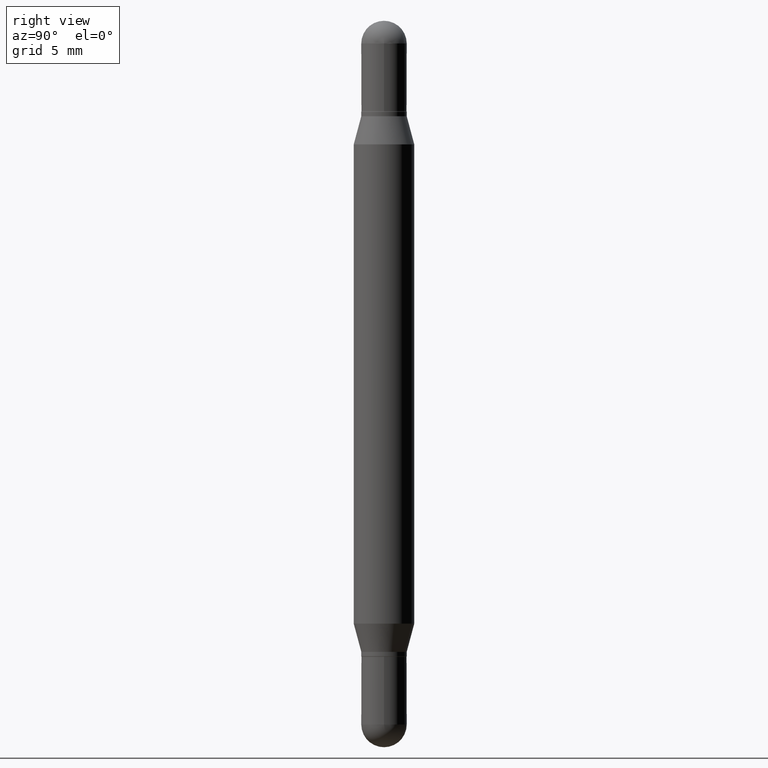
[diagram: clean part render]
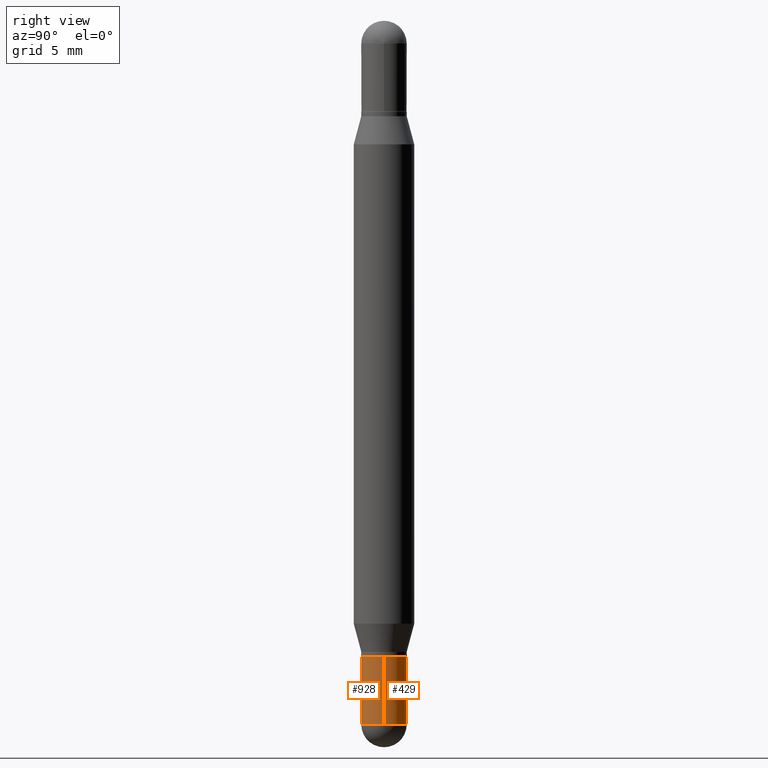
[diagram: same view with one multi-face feature highlighted, each face labeled with its STEP entity id]
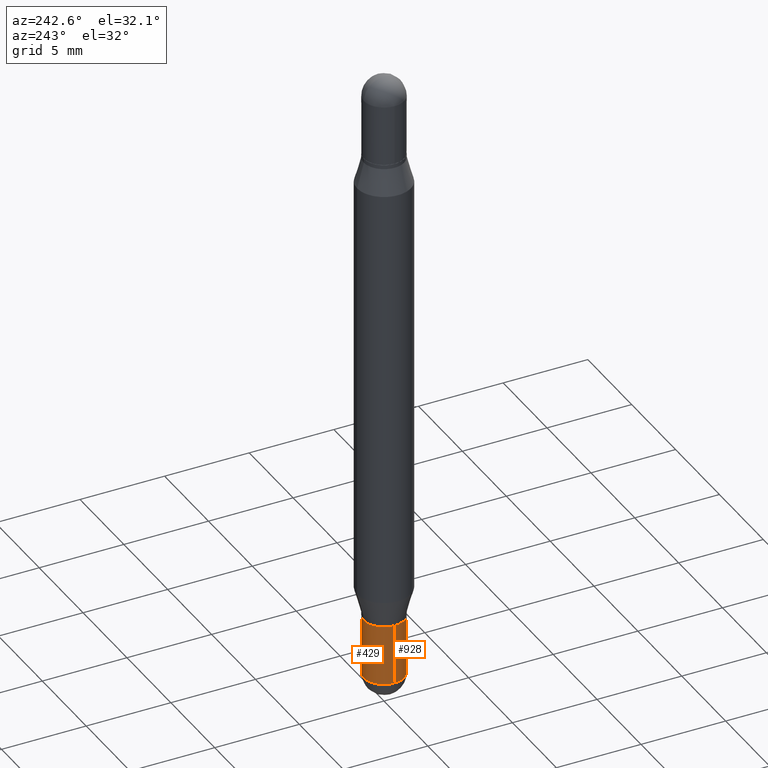
[diagram: same view with one multi-face feature highlighted, each face labeled with its STEP entity id]
A machine part, right view. The highlighted faces form ONE feature: a constant-radius fillet chain: 2 tangent blend faces with common blend radius 1.1913 mm. The faces share edges in the B-rep.
A second angle (auxiliary view) of the same feature is appended — it is thin or edge-on in the first view.
Their STEP definitions:
[1] entity #429 (Cylinder):
#16 = CARTESIAN_POINT ( 'NONE',  ( 0.04689999999999999725, -3.275009495834859024E-16, 2.286926907848294038E-30 ) ) ;
#59 = CARTESIAN_POINT ( 'NONE',  ( -0.04689999999999999725, 3.332445430714869676E-16, -2.306980557329550952E-30 ) ) ;
#72 = VERTEX_POINT ( 'NONE', #657 ) ;
#86 = CIRCLE ( 'NONE', #1094, 0.04689999999999999725 ) ;
#91 = ORIENTED_EDGE ( 'NONE', *, *, #268, .T. ) ;
#118 = CARTESIAN_POINT ( 'NONE',  ( -0.04689999999999999725, -4.495648722615525747E-15, -1.453099999999999836 ) ) ;
#139 = AXIS2_PLACEMENT_3D ( 'NONE', #263, #961, #184 ) ;
#154 = VERTEX_POINT ( 'NONE', #825 ) ;
#174 = VERTEX_POINT ( 'NONE', #118 ) ;
#184 = DIRECTION ( 'NONE',  ( 1.000000000000000000, -6.982962677686277755E-15, 0.000000000000000000 ) ) ;
#207 = CARTESIAN_POINT ( 'NONE',  ( 3.553510722267622201E-29, -5.073471533472974042E-15, -1.453099999999999836 ) ) ;
#263 = CARTESIAN_POINT ( 'NONE',  ( 3.553510722267622201E-29, -5.073471533472974042E-15, -1.453099999999999836 ) ) ;
#268 = EDGE_CURVE ( 'NONE', #72, #154, #86, .T. ) ;
#273 = VECTOR ( 'NONE', #847, 39.37007874015748143 ) ;
#311 = ORIENTED_EDGE ( 'NONE', *, *, #634, .F. ) ;
#339 = EDGE_CURVE ( 'NONE', #174, #946, #467, .T. ) ;
#392 = CARTESIAN_POINT ( 'NONE',  ( 3.210900542521084585E-29, -4.584314997901050598E-15, -1.313000000000000167 ) ) ;
#429 = ADVANCED_FACE ( 'NONE', ( #738 ), #744, .T. ) ;
#464 = DIRECTION ( 'NONE',  ( 1.000000000000000000, -6.982962677686277755E-15, 0.000000000000000000 ) ) ;
#467 = LINE ( 'NONE', #59, #273 ) ;
#471 = VECTOR ( 'NONE', #890, 39.37007874015748143 ) ;
#473 = CARTESIAN_POINT ( 'NONE',  ( -0.04689999999999999725, -4.495648722615525747E-15, -1.313000000000000167 ) ) ;
#534 = EDGE_CURVE ( 'NONE', #72, #1072, #611, .T. ) ;
#556 = EDGE_CURVE ( 'NONE', #154, #174, #638, .T. ) ;
#576 = CIRCLE ( 'NONE', #807, 0.04689999999999999725 ) ;
#610 = ORIENTED_EDGE ( 'NONE', *, *, #556, .T. ) ;
#611 = LINE ( 'NONE', #16, #471 ) ;
#613 = ORIENTED_EDGE ( 'NONE', *, *, #339, .T. ) ;
#628 = DIRECTION ( 'NONE',  ( 1.000000000000000000, -6.982962677686277755E-15, 0.000000000000000000 ) ) ;
#634 = EDGE_CURVE ( 'NONE', #1072, #946, #576, .T. ) ;
#638 = CIRCLE ( 'NONE', #139, 0.04689999999999999725 ) ;
#643 = DIRECTION ( 'NONE',  ( -2.445468806185136597E-29, 3.491481338843145583E-15, 1.000000000000000000 ) ) ;
#657 = CARTESIAN_POINT ( 'NONE',  ( 0.04689999999999999725, -5.156394215270499012E-15, -1.453099999999999836 ) ) ;
#679 = EDGE_LOOP ( 'NONE', ( #610, #613, #311, #800, #91 ) ) ;
#684 = CARTESIAN_POINT ( 'NONE',  ( 0.04689999999999999725, -4.911815947484537290E-15, -1.313000000000000167 ) ) ;
#738 = FACE_OUTER_BOUND ( 'NONE', #679, .T. ) ;
#744 = CYLINDRICAL_SURFACE ( 'NONE', #788, 0.04689999999999999725 ) ;
#788 = AXIS2_PLACEMENT_3D ( 'NONE', #920, #643, #989 ) ;
#800 = ORIENTED_EDGE ( 'NONE', *, *, #534, .F. ) ;
#803 = DIRECTION ( 'NONE',  ( -2.445468806185136597E-29, 3.491481338843145583E-15, 1.000000000000000000 ) ) ;
#807 = AXIS2_PLACEMENT_3D ( 'NONE', #392, #1063, #464 ) ;
#825 = CARTESIAN_POINT ( 'NONE',  ( 3.332445430715229101E-16, 0.04689999999999499430, -1.453100000000000058 ) ) ;
#847 = DIRECTION ( 'NONE',  ( -2.445468806185136877E-29, 3.491481338843145188E-15, 1.000000000000000000 ) ) ;
#890 = DIRECTION ( 'NONE',  ( -2.445468806185136877E-29, 3.491481338843145188E-15, 1.000000000000000000 ) ) ;
#920 = CARTESIAN_POINT ( 'NONE',  ( 0.000000000000000000, 0.000000000000000000, 0.000000000000000000 ) ) ;
#946 = VERTEX_POINT ( 'NONE', #473 ) ;
#961 = DIRECTION ( 'NONE',  ( -2.445468806185136597E-29, 3.491481338843145583E-15, 1.000000000000000000 ) ) ;
#989 = DIRECTION ( 'NONE',  ( 1.000000000000000000, -6.982962677686266711E-15, 4.876176775795936353E-29 ) ) ;
#1063 = DIRECTION ( 'NONE',  ( -2.445468806185136597E-29, 3.491481338843145583E-15, 1.000000000000000000 ) ) ;
#1072 = VERTEX_POINT ( 'NONE', #684 ) ;
#1094 = AXIS2_PLACEMENT_3D ( 'NONE', #207, #803, #628 ) ;
[2] entity #928 (Cylinder):
#16 = CARTESIAN_POINT ( 'NONE',  ( 0.04689999999999999725, -3.275009495834859024E-16, 2.286926907848294038E-30 ) ) ;
#57 = FACE_OUTER_BOUND ( 'NONE', #1032, .T. ) ;
#59 = CARTESIAN_POINT ( 'NONE',  ( -0.04689999999999999725, 3.332445430714869676E-16, -2.306980557329550952E-30 ) ) ;
#72 = VERTEX_POINT ( 'NONE', #657 ) ;
#113 = ORIENTED_EDGE ( 'NONE', *, *, #364, .F. ) ;
#118 = CARTESIAN_POINT ( 'NONE',  ( -0.04689999999999999725, -4.495648722615525747E-15, -1.453099999999999836 ) ) ;
#148 = DIRECTION ( 'NONE',  ( 1.000000000000000000, -6.982962677686277755E-15, 0.000000000000000000 ) ) ;
#174 = VERTEX_POINT ( 'NONE', #118 ) ;
#267 = VERTEX_POINT ( 'NONE', #981 ) ;
#273 = VECTOR ( 'NONE', #847, 39.37007874015748143 ) ;
#294 = EDGE_CURVE ( 'NONE', #267, #72, #774, .T. ) ;
#339 = EDGE_CURVE ( 'NONE', #174, #946, #467, .T. ) ;
#364 = EDGE_CURVE ( 'NONE', #946, #1072, #606, .T. ) ;
#384 = CYLINDRICAL_SURFACE ( 'NONE', #452, 0.04689999999999999725 ) ;
#387 = CARTESIAN_POINT ( 'NONE',  ( 3.553510722267622201E-29, -5.073471533472974042E-15, -1.453099999999999836 ) ) ;
#397 = DIRECTION ( 'NONE',  ( 1.000000000000000000, -6.982962677686277755E-15, 0.000000000000000000 ) ) ;
#406 = ORIENTED_EDGE ( 'NONE', *, *, #294, .T. ) ;
#428 = ORIENTED_EDGE ( 'NONE', *, *, #339, .F. ) ;
#452 = AXIS2_PLACEMENT_3D ( 'NONE', #992, #742, #465 ) ;
#465 = DIRECTION ( 'NONE',  ( 1.000000000000000000, -6.982962677686266711E-15, 4.876176775795936353E-29 ) ) ;
#467 = LINE ( 'NONE', #59, #273 ) ;
#471 = VECTOR ( 'NONE', #890, 39.37007874015748143 ) ;
#473 = CARTESIAN_POINT ( 'NONE',  ( -0.04689999999999999725, -4.495648722615525747E-15, -1.313000000000000167 ) ) ;
#486 = ORIENTED_EDGE ( 'NONE', *, *, #534, .T. ) ;
#498 = AXIS2_PLACEMENT_3D ( 'NONE', #675, #502, #148 ) ;
#502 = DIRECTION ( 'NONE',  ( -2.445468806185136597E-29, 3.491481338843145583E-15, 1.000000000000000000 ) ) ;
#534 = EDGE_CURVE ( 'NONE', #72, #1072, #611, .T. ) ;
#554 = DIRECTION ( 'NONE',  ( -2.445468806185136597E-29, 3.491481338843145583E-15, 1.000000000000000000 ) ) ;
#606 = CIRCLE ( 'NONE', #498, 0.04689999999999999725 ) ;
#611 = LINE ( 'NONE', #16, #471 ) ;
#618 = AXIS2_PLACEMENT_3D ( 'NONE', #387, #554, #735 ) ;
#651 = EDGE_CURVE ( 'NONE', #174, #267, #789, .T. ) ;
#657 = CARTESIAN_POINT ( 'NONE',  ( 0.04689999999999999725, -5.156394215270499012E-15, -1.453099999999999836 ) ) ;
#675 = CARTESIAN_POINT ( 'NONE',  ( 3.210900542521084585E-29, -4.584314997901050598E-15, -1.313000000000000167 ) ) ;
#684 = CARTESIAN_POINT ( 'NONE',  ( 0.04689999999999999725, -4.911815947484537290E-15, -1.313000000000000167 ) ) ;
#735 = DIRECTION ( 'NONE',  ( 1.000000000000000000, -6.982962677686277755E-15, 0.000000000000000000 ) ) ;
#741 = CARTESIAN_POINT ( 'NONE',  ( 3.553510722267622201E-29, -5.073471533472974042E-15, -1.453099999999999836 ) ) ;
#742 = DIRECTION ( 'NONE',  ( -2.445468806185136597E-29, 3.491481338843145583E-15, 1.000000000000000000 ) ) ;
#774 = CIRCLE ( 'NONE', #618, 0.04689999999999999725 ) ;
#789 = CIRCLE ( 'NONE', #943, 0.04689999999999999725 ) ;
#847 = DIRECTION ( 'NONE',  ( -2.445468806185136877E-29, 3.491481338843145188E-15, 1.000000000000000000 ) ) ;
#863 = ORIENTED_EDGE ( 'NONE', *, *, #651, .T. ) ;
#890 = DIRECTION ( 'NONE',  ( -2.445468806185136877E-29, 3.491481338843145188E-15, 1.000000000000000000 ) ) ;
#903 = DIRECTION ( 'NONE',  ( -2.445468806185136597E-29, 3.491481338843145583E-15, 1.000000000000000000 ) ) ;
#928 = ADVANCED_FACE ( 'NONE', ( #57 ), #384, .T. ) ;
#943 = AXIS2_PLACEMENT_3D ( 'NONE', #741, #903, #397 ) ;
#946 = VERTEX_POINT ( 'NONE', #473 ) ;
#981 = CARTESIAN_POINT ( 'NONE',  ( -3.275009495834508474E-16, -0.04690000000000513897, -1.453099999999999614 ) ) ;
#992 = CARTESIAN_POINT ( 'NONE',  ( 0.000000000000000000, 0.000000000000000000, 0.000000000000000000 ) ) ;
#1032 = EDGE_LOOP ( 'NONE', ( #428, #863, #406, #486, #113 ) ) ;
#1072 = VERTEX_POINT ( 'NONE', #684 ) ;